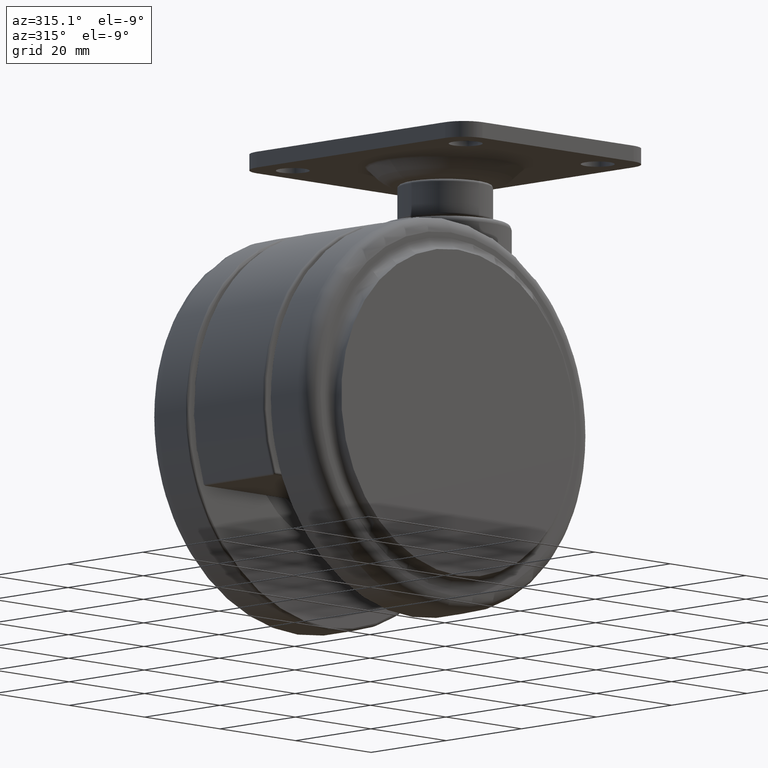
[diagram: clean part render]
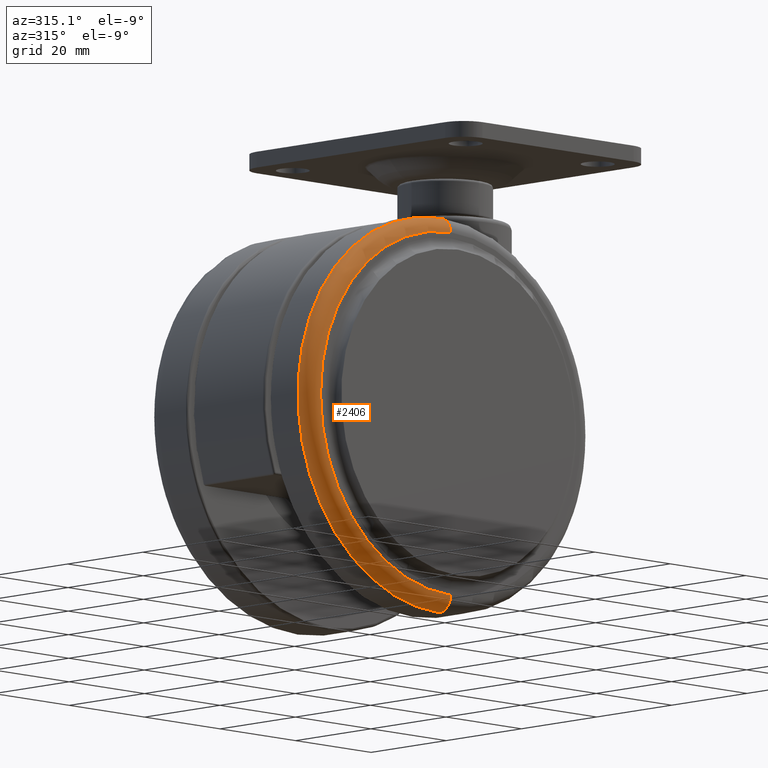
[diagram: same view with one face highlighted and labeled with its STEP entity id]
A machine part, auxiliary view. The second image highlights one B-rep face of the part: STEP entity #2406.
In plain terms, the highlighted toroidal blend (fillet) surface has major radius 34.5 mm and minor (blend) radius 3 mm.
Its self-contained STEP definition (entity closure, byte-faithful):
#30 = ORIENTED_EDGE ( 'NONE', *, *, #297, .F. ) ;
#234 = DIRECTION ( 'NONE',  ( -1.000000000000000000, -0.0000000000000000000, -0.0000000000000000000 ) ) ;
#297 = EDGE_CURVE ( 'NONE', #2830, #2409, #2923, .T. ) ;
#299 = DIRECTION ( 'NONE',  ( 0.0000000000000000000, 0.0000000000000000000, -1.000000000000000000 ) ) ;
#325 = AXIS2_PLACEMENT_3D ( 'NONE', #2238, #234, #2581 ) ;
#359 = CARTESIAN_POINT ( 'NONE',  ( -19.99999999999999600, -18.50000000000000000, -3.000000000000000400 ) ) ;
#465 = EDGE_LOOP ( 'NONE', ( #3583, #1627, #1104, #30 ) ) ;
#654 = EDGE_CURVE ( 'NONE', #2263, #2409, #3502, .T. ) ;
#982 = CIRCLE ( 'NONE', #2787, 2.999999999999999100 ) ;
#1104 = ORIENTED_EDGE ( 'NONE', *, *, #654, .T. ) ;
#1255 = CIRCLE ( 'NONE', #3283, 37.50000000000000000 ) ;
#1318 = DIRECTION ( 'NONE',  ( 0.0000000000000000000, -1.000000000000000000, 0.0000000000000000000 ) ) ;
#1627 = ORIENTED_EDGE ( 'NONE', *, *, #4092, .T. ) ;
#1962 = DIRECTION ( 'NONE',  ( 0.0000000000000000000, -1.000000000000000000, 0.0000000000000000000 ) ) ;
#1984 = CARTESIAN_POINT ( 'NONE',  ( -20.00000000000000000, -21.50000000000000000, -75.00000000000001400 ) ) ;
#2238 = CARTESIAN_POINT ( 'NONE',  ( -20.00000000000000000, -18.50000000000000000, -75.00000000000001400 ) ) ;
#2263 = VERTEX_POINT ( 'NONE', #4076 ) ;
#2310 = DIRECTION ( 'NONE',  ( 1.000000000000000000, 0.0000000000000000000, -1.224646799147353200E-016 ) ) ;
#2321 = CARTESIAN_POINT ( 'NONE',  ( -20.00000000000000000, -18.50000000000000000, -40.50000000000000000 ) ) ;
#2374 = EDGE_CURVE ( 'NONE', #3756, #2830, #982, .T. ) ;
#2406 = ADVANCED_FACE ( 'NONE', ( #4301 ), #2655, .T. ) ;
#2409 = VERTEX_POINT ( 'NONE', #1984 ) ;
#2421 = AXIS2_PLACEMENT_3D ( 'NONE', #4224, #3532, #2887 ) ;
#2581 = DIRECTION ( 'NONE',  ( 0.0000000000000000000, 0.0000000000000000000, 1.000000000000000000 ) ) ;
#2655 = TOROIDAL_SURFACE ( 'NONE', #3672, 34.50000000000000000, 3.000000000000000000 ) ;
#2662 = DIRECTION ( 'NONE',  ( 0.0000000000000000000, 0.0000000000000000000, -1.000000000000000000 ) ) ;
#2787 = AXIS2_PLACEMENT_3D ( 'NONE', #4290, #2310, #299 ) ;
#2830 = VERTEX_POINT ( 'NONE', #3874 ) ;
#2887 = DIRECTION ( 'NONE',  ( 0.0000000000000000000, 0.0000000000000000000, -1.000000000000000000 ) ) ;
#2923 = CIRCLE ( 'NONE', #2421, 34.50000000000000700 ) ;
#3283 = AXIS2_PLACEMENT_3D ( 'NONE', #3959, #1962, #4285 ) ;
#3502 = CIRCLE ( 'NONE', #325, 3.000000000000002700 ) ;
#3532 = DIRECTION ( 'NONE',  ( 0.0000000000000000000, -1.000000000000000000, 0.0000000000000000000 ) ) ;
#3583 = ORIENTED_EDGE ( 'NONE', *, *, #2374, .F. ) ;
#3672 = AXIS2_PLACEMENT_3D ( 'NONE', #2321, #1318, #2662 ) ;
#3756 = VERTEX_POINT ( 'NONE', #359 ) ;
#3874 = CARTESIAN_POINT ( 'NONE',  ( -19.99999999999999600, -21.50000000000000000, -5.999999999999998200 ) ) ;
#3959 = CARTESIAN_POINT ( 'NONE',  ( -20.00000000000000000, -18.50000000000000000, -40.50000000000000000 ) ) ;
#4076 = CARTESIAN_POINT ( 'NONE',  ( -20.00000000000000000, -18.50000000000000000, -78.00000000000001400 ) ) ;
#4092 = EDGE_CURVE ( 'NONE', #3756, #2263, #1255, .T. ) ;
#4224 = CARTESIAN_POINT ( 'NONE',  ( -20.00000000000000000, -21.50000000000000000, -40.50000000000000000 ) ) ;
#4285 = DIRECTION ( 'NONE',  ( 0.0000000000000000000, 0.0000000000000000000, -1.000000000000000000 ) ) ;
#4290 = CARTESIAN_POINT ( 'NONE',  ( -19.99999999999999600, -18.50000000000000000, -5.999999999999998200 ) ) ;
#4301 = FACE_OUTER_BOUND ( 'NONE', #465, .T. ) ;